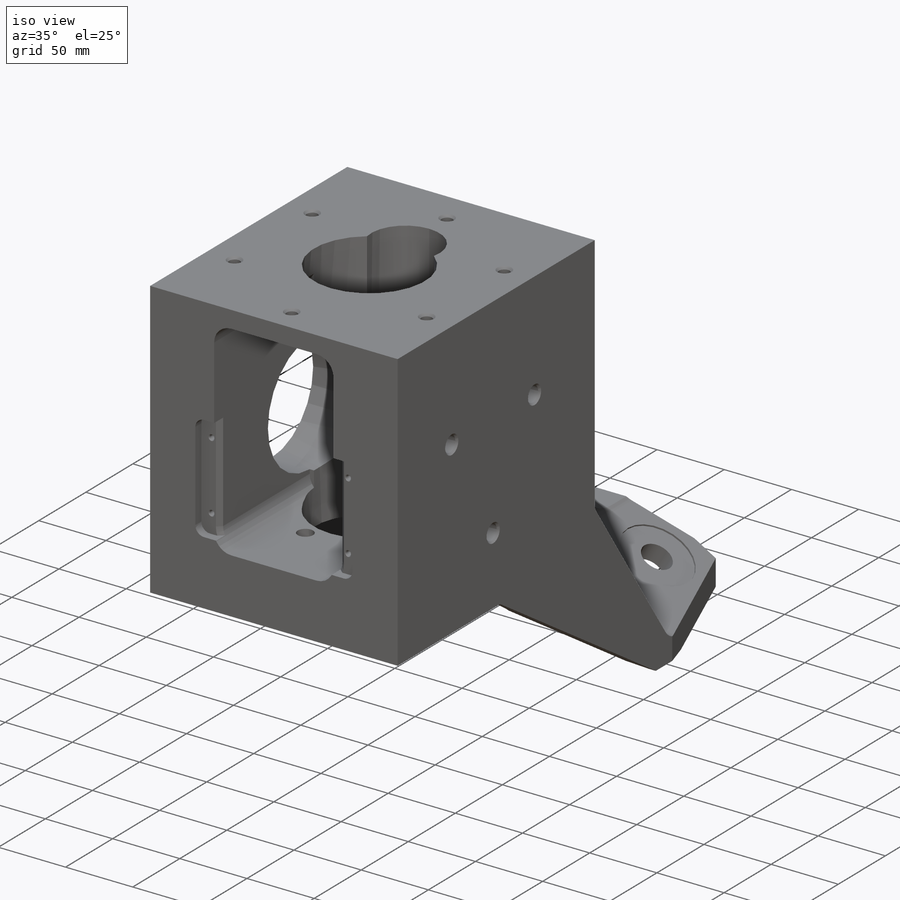
[diagram: iso view]
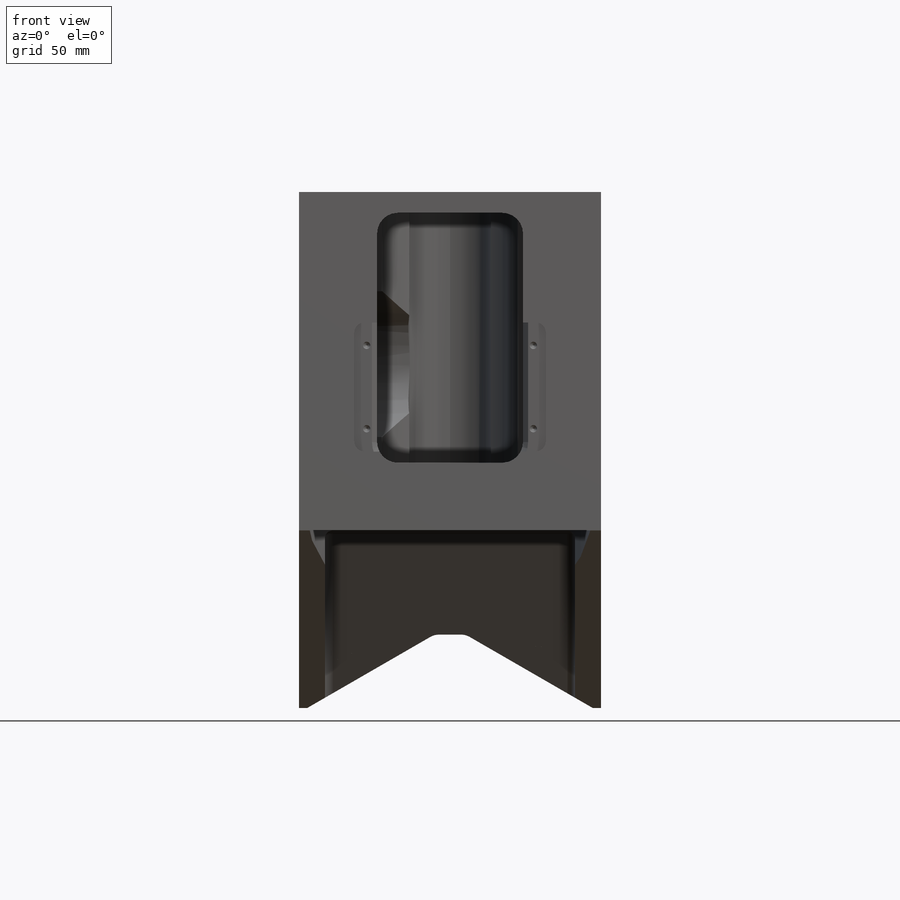
[diagram: front view]
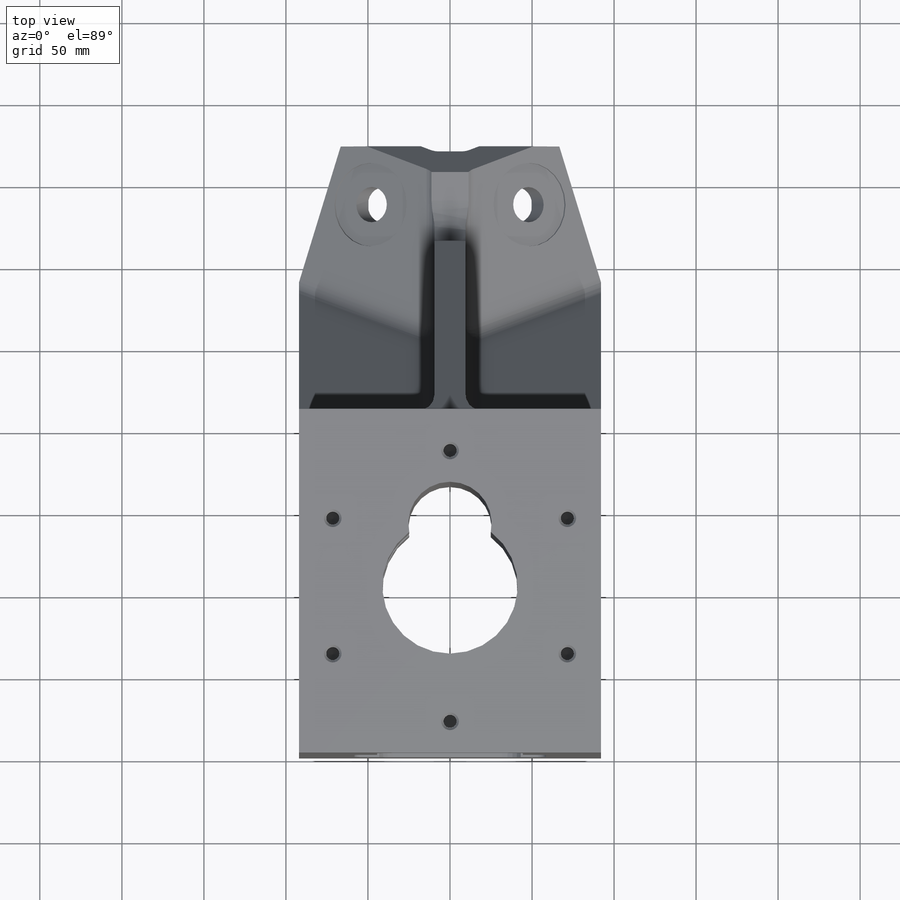
[diagram: top view]
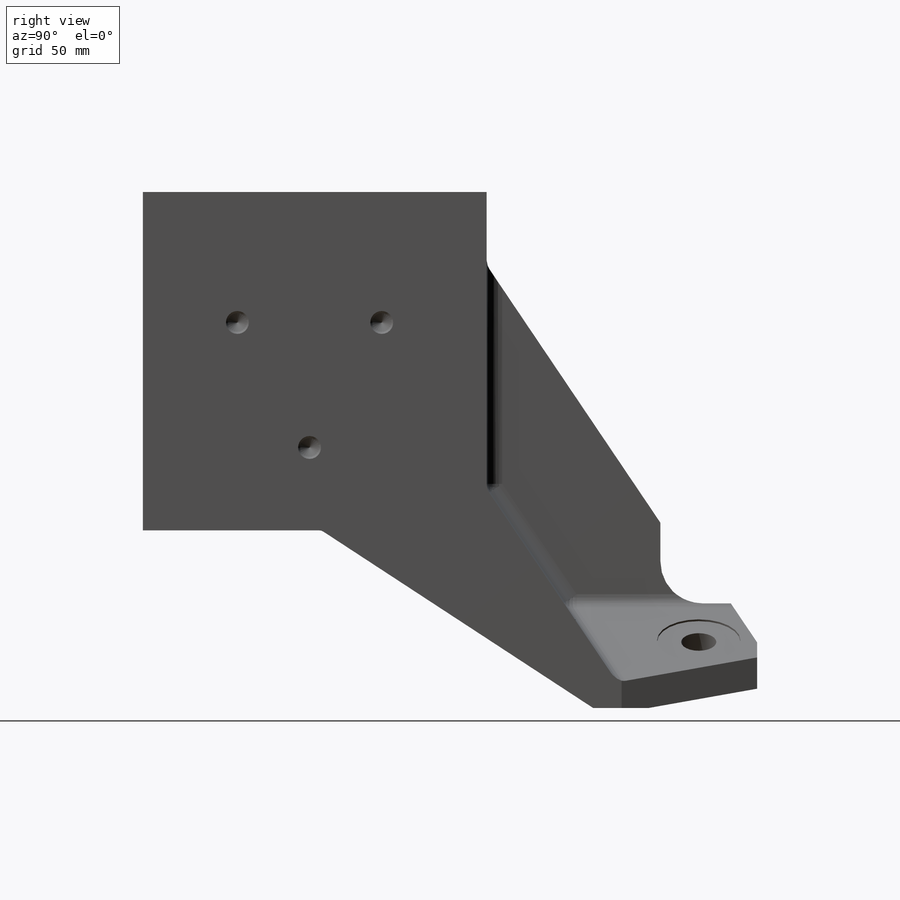
[diagram: right view]
SOLIDWORKS PART (.sldprt)
format: sldprt  version: not decoded by parser v0  size: 6,041,600 bytes
history: native  units: mm
features: sketch x56, thread x44, cut_extrude x26, hole x14, fillet x6, extrude x2, mirror x2, material x1, plane x1, chamfer x1 + 1 further entry (+13 scaffold rows collapsed)
feature tree (167):
  scaffold x13  (default folders/planes/origin — collapsed)
  material  "Low Carbon Steel"
  "Origin"  ID=-1
  sketch  "Sketch1"  dims[D1=206.248mm D2=184.15mm]
  extrude  "Extrude1"  Depth=209.55mm
  sketch  "Sketch2"  dims[c1.D1=25.4mm c1.D4=4.7625mm c1.D9=9.525mm c1.D2=340.868mm c1.D3=250.698mm c1.D5=107.442mm c1.D6=317.246mm c1.D7=41.656mm c1.D8=374.396mm c1.D10=164.592mm c2.D10=34.0deg c2.D11=278.638mm c2.D12=274.4978mm]
  extrude  "Extrude2"  [1 undecoded]
  sketch  "Sketch3"  dims[D1=76.2mm]
  cut_extrude  "Cut-Extrude1"  Depth=82.55mm
  sketch  "Sketch4"  dims[c1.D1=82.55mm c2.D1=120.0deg]
  cut_extrude  "Cut-Extrude2"  [1 undecoded]
  mirror  "Mirror1"
  fillet  "Fillet1"  Radius=9.525mm
  plane  "Plane1"
  sketch  "Sketch5"  dims[D1=19.05mm D2=15.875mm]
  cut_extrude  "Cut-Extrude3"  [1 undecoded]
  sketch  "Sketch6"  dims[D1=16.51mm D2=5.08mm]
  cut_extrude  "Cut-Extrude4"  [1 undecoded]
  fillet  "Fillet2"  Radius=9.525mm
  fillet  "Fillet3"  Radius=4.7625mm
  sketch  "Sketch9"  dims[c1.D1=25.4mm c1.D2=80.01mm c2.D2=17.1deg c2.D3=~82.56399mm]
  cut_extrude  "Cut-Extrude5"  [1 undecoded]
  sketch  "Sketch10"  dims[D1=~21.43125mm D2=31.75mm D3=35.56mm]
  cut_extrude  "Cut-Extrude6"  [1 undecoded]
  sketch  "Sketch11"  dims[D1=50.8mm]
  cut_extrude  "Cut-Extrude7"  Depth=1.27mm
  sketch  "Sketch12"
  cut_extrude  "Cut-Extrude8"  Depth=1.27mm
  mirror  "Mirror2"
  sketch  "Sketch13"  dims[D1=82.55mm D2=101.6mm]
  cut_extrude  "Cut-Extrude9"  [1 undecoded]
  sketch  "Sketch14"  dims[D1=25.4mm D2=139.7mm]
  cut_extrude  "Cut-Extrude10"  [1 undecoded]
  sketch  "Sketch15"  dims[D1=12.7mm D2=152.4mm D3=12.7mm D4=88.9mm]
  cut_extrude  "Cut-Extrude11"  Depth=101.6mm
  sketch  "Sketch16"  dims[D1=6.35mm D2=78.74mm D3=116.84mm D4=79.502mm]
  cut_extrude  "Cut-Extrude12"  Depth=6.35mm
  chamfer  "Chamfer1"  Distance=3.175mm Angle=45deg
  sketch  "Sketch17"  dims[D2=85.725mm D1=158.75mm D3=101.6mm]
  cut_extrude  "Cut-Extrude13"  Depth=19.05mm
  fillet  "Fillet5"  Radius=12.7mm
  hole  "3/8-16 Tapped Hole1"  Diameter=7.9375mm Depth=23.8252mm
  sketch  "Sketch24"  dims[c1.D1=165.1mm c1.D2=82.55mm c1.D3=101.6mm c2.D2=60.0deg]
  sketch  "Sketch23"  dims[hole-wizard template sketch: 39 standard entries collapsed; hole parameters kept: c13.Tap Drill Dia.=7.9375mm c13.Tap Drill Depth=23.8252mm c13.Near C'Sink Dia.=10.795mm c13.D4=~33.297463mm c13.Near C'Sink Angle=82.0deg c14.D5=~14.816244mm c14.Drill Angle=118.0deg]
  thread  "Hole Thread1"  Diameter=19.05mm  [1 undecoded]
  thread  "Hole Thread2"  Diameter=19.05mm  [1 undecoded]
  thread  "Hole Thread3"  Diameter=19.05mm  [1 undecoded]
  thread  "Hole Thread4"  Diameter=19.05mm  [1 undecoded]
  thread  "Hole Thread5"  Diameter=19.05mm  [1 undecoded]
  thread  "Hole Thread6"  Diameter=19.05mm  [1 undecoded]
  hole  "#8-32 Tapped Hole1"  Diameter=3.4544mm Depth=10.7188mm
  sketch  "Sketch26"  dims[D1=13.97mm D2=50.8mm D3=101.6mm]
  sketch  "Sketch25"  dims[hole-wizard template sketch: 40 standard entries collapsed; hole parameters kept: c13.Tap Drill Depth=10.7188mm c13.Near C'Sink Dia.=4.445mm c13.D4=~33.297463mm c13.Near C'Sink Angle=82.0deg c14.D5=~14.816244mm c14.Drill Angle=118.0deg]
  thread  "Hole Thread7"  Diameter=8.3312mm  [1 undecoded]
  thread  "Hole Thread8"  Diameter=8.3312mm  [1 undecoded]
  thread  "Hole Thread9"  Diameter=8.3312mm  [1 undecoded]
  thread  "Hole Thread10"  Diameter=8.3312mm  [1 undecoded]
  hole  "1/2-20 Tapped Hole1"  Diameter=11.50874mm Depth=29.21mm
  sketch  "Sketch28"  dims[c1.D1=101.6mm c1.D2=~345.131816mm c2.D2=15.24deg c2.D3=~13.353431mm c3.D3=120.0deg c3.D4=50.8mm c4.D4=120.0deg c4.D5=101.6mm]
  sketch  "Sketch27"  dims[hole-wizard template sketch: 39 standard entries collapsed; hole parameters kept: c13.Tap Drill Dia.=~11.50874mm c13.Tap Drill Depth=29.21mm c13.Near C'Sink Dia.=13.97mm c13.D4=~33.297463mm c13.Near C'Sink Angle=82.0deg c14.D5=~14.816244mm c14.Drill Angle=118.0deg]
  thread  "Hole Thread11"  Diameter=25.4mm  [1 undecoded]
  thread  "Hole Thread12"  Diameter=25.4mm  [1 undecoded]
  thread  "Hole Thread13"  Diameter=25.4mm  [1 undecoded]
  hole  "1/4-20 Tapped Hole1"  Diameter=5.1054mm Depth=16.51mm
  sketch  "Sketch30"  dims[c1.D3=139.7mm c1.D1=~70.076345mm c2.D1=120.0deg c2.D2=~70.076345mm c3.D2=120.0deg c3.D4=101.6mm]
  sketch  "Sketch29"  dims[hole-wizard template sketch: 40 standard entries collapsed; hole parameters kept: c13.Tap Drill Depth=16.51mm c13.Near C'Sink Dia.=6.731mm c13.D4=~33.297463mm c13.Near C'Sink Angle=82.0deg c14.D5=~14.816244mm c14.Drill Angle=118.0deg]
  thread  "Hole Thread14"  Diameter=12.7mm  [1 undecoded]
  thread  "Hole Thread15"  Diameter=12.7mm  [1 undecoded]
  thread  "Hole Thread16"  Diameter=12.7mm  [1 undecoded]
  sketch  "Sketch18"  dims[D1=88.9mm D2=101.6mm D3=104.902mm]
  cut_extrude  "Cut-Extrude14"  Depth=92.075mm
  sketch  "Sketch20"  dims[D2=86.5124mm D1=160.3248mm D3=104.902mm D4=101.6mm D5=24.7396mm]
  cut_extrude  "Cut-Extrude15"  Depth=19.05mm
  fillet  "Fillet6"  Radius=12.7mm
  sketch  "Sketch51"  dims[D1=104.902mm D2=12.7mm D3=11.43mm]
  cut_extrude  "Cut-Extrude25"  [1 undecoded]
  hole  "1/4-20 Tapped Hole2"  Diameter=5.1054mm Depth=16.51mm
  sketch  "Sketch32"  dims[c1.D1=127.0mm c1.D2=63.5mm c2.D2=120.0deg c2.D3=31.75mm c3.D3=120.0deg]
  sketch  "Sketch31"  dims[hole-wizard template sketch: 40 standard entries collapsed; hole parameters kept: c13.Tap Drill Depth=16.51mm c13.Near C'Sink Dia.=6.731mm c13.D4=~33.297463mm c13.Near C'Sink Angle=82.0deg c14.D5=~14.816244mm c14.Drill Angle=118.0deg]
  thread  "Hole Thread17"  Diameter=12.7mm  [1 undecoded]
  thread  "Hole Thread18"  Diameter=12.7mm  [1 undecoded]
  thread  "Hole Thread19"  Diameter=12.7mm  [1 undecoded]
  hole  "1/2-20 Tapped Hole2"  Diameter=11.50874mm Depth=29.21mm
  sketch  "Sketch34"  dims[c1.D1=101.6mm c1.D2=101.6mm c1.D3=104.902mm c1.D4=50.8mm c2.D4=120.0deg c2.D5=~43.95366mm c3.D5=120.0deg]
  sketch  "Sketch33"  dims[hole-wizard template sketch: 39 standard entries collapsed; hole parameters kept: c13.Tap Drill Dia.=~11.50874mm c13.Tap Drill Depth=29.21mm c13.Near C'Sink Dia.=13.97mm c13.D4=~33.297463mm c13.Near C'Sink Angle=82.0deg c14.D5=~14.816244mm c14.Drill Angle=118.0deg]
  thread  "Hole Thread20"  Diameter=25.4mm  [1 undecoded]
  thread  "Hole Thread21"  Diameter=25.4mm  [1 undecoded]
  thread  "Hole Thread22"  Diameter=25.4mm  [1 undecoded]
  sketch  "Sketch21"  dims[D1=88.9mm D2=101.6mm D3=104.902mm]
  cut_extrude  "Cut-Extrude16"  Depth=92.075mm
  sketch  "Sketch22"  dims[D2=86.5124mm D1=160.3248mm D3=101.6mm D4=104.902mm]
  cut_extrude  "Cut-Extrude17"  Depth=19.05mm
  fillet  "Fillet7"  Radius=12.7mm
  sketch  "Sketch52"  dims[D1=104.902mm D2=12.7mm D3=11.43mm]
  cut_extrude  "Cut-Extrude26"  [1 undecoded]
  hole  "1/4-20 Tapped Hole3"  Diameter=5.1054mm Depth=16.51mm
  sketch  "Sketch36"  dims[c1.D1=127.0mm c1.D2=63.5mm c2.D2=120.0deg c2.D3=~43.067424mm c3.D3=120.0deg]
  sketch  "Sketch35"  dims[hole-wizard template sketch: 40 standard entries collapsed; hole parameters kept: c13.Tap Drill Depth=16.51mm c13.Near C'Sink Dia.=6.731mm c13.D4=~33.297463mm c13.Near C'Sink Angle=82.0deg c14.D5=~14.816244mm c14.Drill Angle=118.0deg]
  thread  "Hole Thread23"  Diameter=12.7mm  [1 undecoded]
  thread  "Hole Thread24"  Diameter=12.7mm  [1 undecoded]
  thread  "Hole Thread25"  Diameter=12.7mm  [1 undecoded]
  hole  "1/2-20 Tapped Hole3"  Diameter=11.50874mm Depth=29.21mm
  sketch  "Sketch38"  dims[c1.D3=101.6mm c1.D1=101.6mm c1.D2=104.902mm c1.D4=50.8mm c2.D4=120.0deg c2.D5=50.8mm c3.D5=120.0deg]
  sketch  "Sketch37"  dims[hole-wizard template sketch: 39 standard entries collapsed; hole parameters kept: c13.Tap Drill Dia.=~11.50874mm c13.Tap Drill Depth=29.21mm c13.Near C'Sink Dia.=13.97mm c13.D4=~33.297463mm c13.Near C'Sink Angle=82.0deg c14.D5=~14.816244mm c14.Drill Angle=118.0deg]
  thread  "Hole Thread26"  Diameter=25.4mm  [1 undecoded]
  thread  "Hole Thread27"  Diameter=25.4mm  [1 undecoded]
  thread  "Hole Thread28"  Diameter=25.4mm  [1 undecoded]
  sketch  "Sketch43"  dims[D1=12.7mm D2=88.9mm D3=12.7mm D4=156.845mm]
  cut_extrude  "Cut-Extrude18"  Depth=129.54mm
  sketch  "Sketch44"  dims[D1=12.7mm D2=127.0mm]
  cut_extrude  "Cut-Extrude19"  Depth=171.45mm
  sketch  "Sketch47"  dims[D2=82.55mm D1=101.6mm]
  cut_extrude  "Cut-Extrude22"  [1 undecoded]
  sketch  "Sketch45"  dims[D3=88.9mm D1=104.902mm D2=101.6mm]
  cut_extrude  "Cut-Extrude20"  [1 undecoded]
  sketch  "Sketch46"  dims[D3=86.36mm D1=101.6mm D2=104.902mm]
  cut_extrude  "Cut-Extrude21"  [1 undecoded]
  sketch  "Sketch48"  dims[D1=88.9mm D2=104.902mm D3=101.6mm]
  cut_extrude  "Cut-Extrude23"  [1 undecoded]
  sketch  "Sketch49"  dims[D3=86.36mm D1=101.6mm D2=104.902mm]
  cut_extrude  "Cut-Extrude24"  [1 undecoded]
  hole  "CBORE for 1/4 Socket Head Cap Screw1"  Diameter=7.14248mm Depth=28.575mm
  sketch  "Sketch54"  dims[c1.D3=127.0mm c1.D1=104.902mm c1.D2=101.6mm c1.D4=63.5mm c2.D4=120.0deg c2.D5=31.75mm c3.D5=120.0deg]
  sketch  "Sketch53"  dims[hole-wizard template sketch: 42 standard entries collapsed; hole parameters kept: c12.Thru Hole Depth=28.575mm c12.C'Bore Dia.=19.05mm c12.C'Bore Depth=12.7mm]
  hole  "1/2-20 Tapped Hole5"  Diameter=11.50874mm Depth=31.75mm
  sketch  "Sketch56"  dims[c1.D1=~65.466337mm c2.D1=7.5deg c2.D2=~65.466337mm c3.D2=120.0deg c3.D3=~34.029091mm c4.D3=120.0deg]
  sketch  "Sketch55"  dims[hole-wizard template sketch: 26 standard entries collapsed; hole parameters kept: c8.Tap Drill Dia.=~11.50874mm c8.Tap Drill Depth=31.75mm c8.Thread Major Dia.=12.7mm c8.Thread Depth=25.4mm c8.Near C'Sink Dia.=13.97mm c8.D6=~4.399409mm c8.Near C'Sink Angle=82.0deg c8.D7=~14.816244mm c8.Drill Angle=118.0deg]
  hole  "1/2-13 Tapped Hole2"  Diameter=10.71626mm Depth=35.179mm
  sketch  "Sketch58"  dims[D1=101.6mm D2=101.6mm D3=146.05mm]
  sketch  "Sketch57"  dims[hole-wizard template sketch: 39 standard entries collapsed; hole parameters kept: c13.Tap Drill Dia.=~10.71626mm c13.Tap Drill Depth=35.179mm c13.Near C'Sink Dia.=13.97mm c13.D4=~33.297463mm c13.Near C'Sink Angle=82.0deg c14.D5=~14.816244mm c14.Drill Angle=118.0deg]
  thread  "Hole Thread29"  Diameter=25.4mm  [1 undecoded]
  thread  "Hole Thread30"  Diameter=25.4mm  [1 undecoded]
  thread  "Hole Thread31"  Diameter=25.4mm  [1 undecoded]
  thread  "Hole Thread32"  Diameter=25.4mm  [1 undecoded]
  thread  "Hole Thread33"  Diameter=25.4mm  [1 undecoded]
  thread  "Hole Thread34"  Diameter=25.4mm  [1 undecoded]
  thread  "Hole Thread35"  Diameter=25.4mm  [1 undecoded]
  thread  "Hole Thread36"  Diameter=25.4mm  [1 undecoded]
  hole  "CBORE for 1/4 Socket Head Cap Screw2"  Diameter=7.14248mm Depth=28.575mm
  sketch  "Sketch60"  dims[c1.D3=127.0mm c1.D1=104.902mm c1.D2=101.6mm c1.D4=~33.368798mm c2.D4=120.0deg c2.D5=63.5mm c3.D5=120.0deg]
  sketch  "Sketch59"  dims[hole-wizard template sketch: 42 standard entries collapsed; hole parameters kept: c12.Thru Hole Depth=28.575mm c12.C'Bore Dia.=19.05mm c12.C'Bore Depth=12.7mm]
  hole  "1/2-20 Tapped Hole4"  Diameter=11.50874mm Depth=31.75mm
  sketch  "Sketch64"  dims[c1.D1=63.5mm c2.D1=120.0deg c2.D2=31.75mm c3.D2=120.0deg c3.D3=63.5mm c4.D3=7.5deg]
  sketch  "Sketch63"  dims[hole-wizard template sketch: 26 standard entries collapsed; hole parameters kept: c8.Tap Drill Dia.=~11.50874mm c8.Tap Drill Depth=31.75mm c8.Thread Major Dia.=12.7mm c8.Thread Depth=25.4mm c8.Near C'Sink Dia.=13.97mm c8.D6=~4.399409mm c8.Near C'Sink Angle=82.0deg c8.D7=~14.816244mm c8.Drill Angle=118.0deg]
  hole  "1/2-13 Tapped Hole3"  Diameter=10.71626mm Depth=35.179mm
  sketch  "Sketch62"  dims[D1=101.6mm D2=101.6mm D3=146.05mm]
  sketch  "Sketch61"  dims[hole-wizard template sketch: 39 standard entries collapsed; hole parameters kept: c13.Tap Drill Dia.=~10.71626mm c13.Tap Drill Depth=35.179mm c13.Near C'Sink Dia.=13.97mm c13.D4=~33.297463mm c13.Near C'Sink Angle=82.0deg c14.D5=~14.816244mm c14.Drill Angle=118.0deg]
  thread  "Hole Thread37"  Diameter=25.4mm  [1 undecoded]
  thread  "Hole Thread38"  Diameter=25.4mm  [1 undecoded]
  thread  "Hole Thread39"  Diameter=25.4mm  [1 undecoded]
  thread  "Hole Thread40"  Diameter=25.4mm  [1 undecoded]
  thread  "Hole Thread41"  Diameter=25.4mm  [1 undecoded]
  thread  "Hole Thread42"  Diameter=25.4mm  [1 undecoded]
  thread  "Hole Thread43"  Diameter=25.4mm  [1 undecoded]
  thread  "Hole Thread44"  Diameter=25.4mm  [1 undecoded]
decode coverage: 133 of 151 modeling features carry decoded parameters; 1 rows unclassified (native names shown)
note: ~ marks probable driven/reference dimensions
note: 59 parameter values undecoded
summary: no parameter record found for 15 features; Diameter pulled from absorbed wizard sketch
note: suppression state not decoded; provenance and decode notes live in map.json
